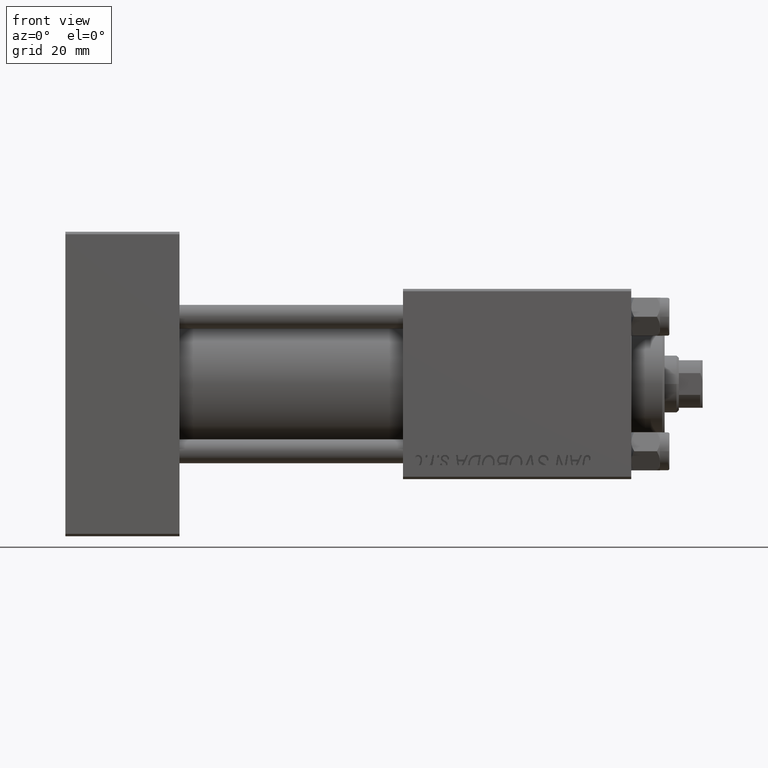
[diagram: clean part render]
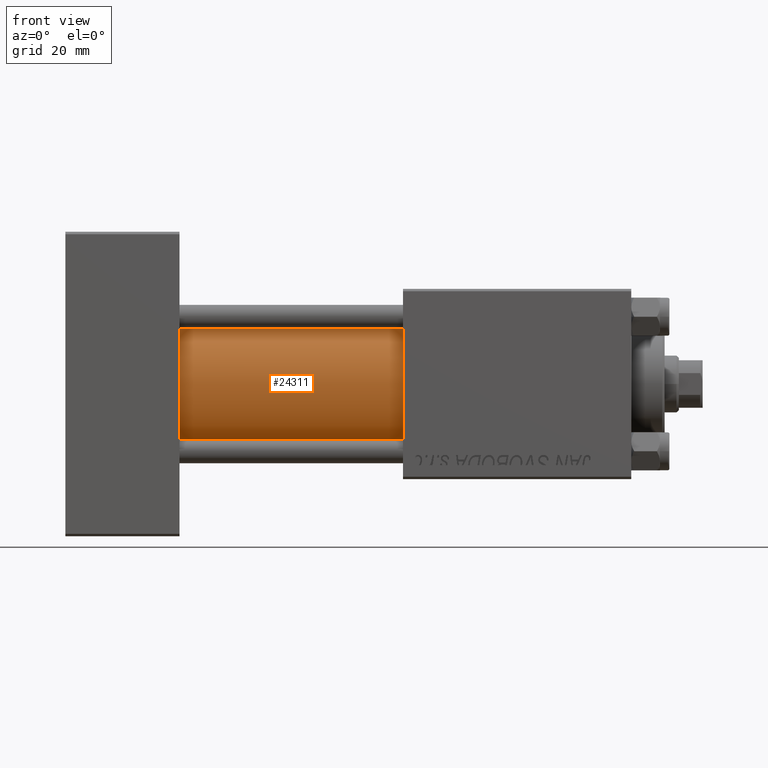
[diagram: same view with one face highlighted and labeled with its STEP entity id]
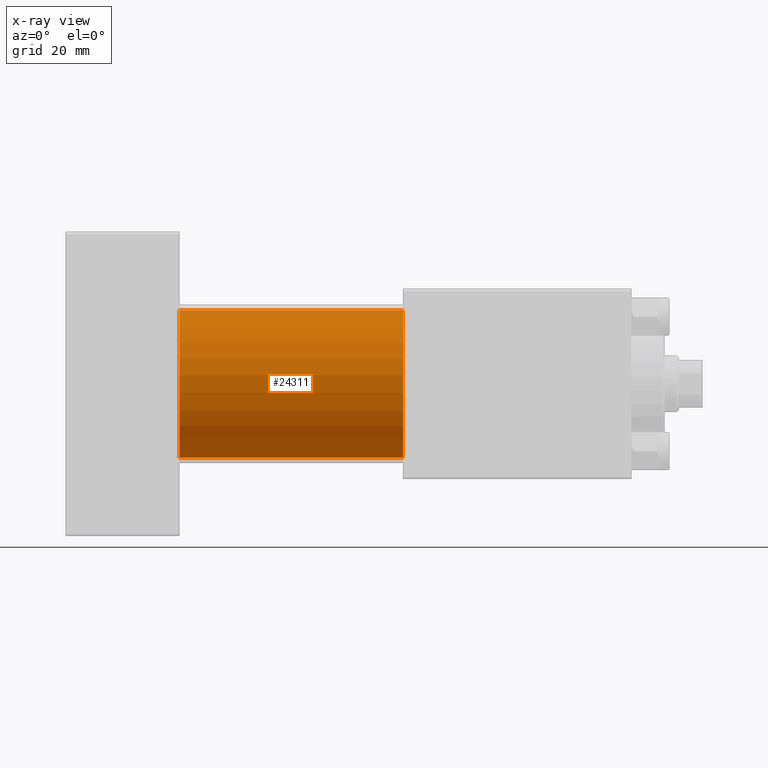
[diagram: x-ray of the same camera — body ghosted, the highlighted face saturated]
A machine part, front view. The second image highlights one B-rep face of the part: STEP entity #24311.
The next image is the same camera in x-ray: the body ghosted, the highlighted face saturated — about 0% of this face is hidden behind the body in this view.
In plain terms, the highlighted cylindrical surface (partial cylindrical patch) has radius 15.5 mm, axis along (-1, -0, -0).
Its self-contained STEP definition (entity closure, byte-faithful):
#1280 = EDGE_CURVE ( 'NONE', #14772, #36867, #15495, .T. ) ;
#4194 = DIRECTION ( 'NONE',  ( -1.000000000000000000, -0.000000000000000000, -0.000000000000000000 ) ) ;
#5879 = EDGE_CURVE ( 'NONE', #14772, #43640, #13635, .T. ) ;
#6112 = LINE ( 'NONE', #10396, #26934 ) ;
#6491 = CARTESIAN_POINT ( 'NONE',  ( 71.00000000000001421, -2.602085213965210642E-15, 0.000000000000000000 ) ) ;
#6820 = ORIENTED_EDGE ( 'NONE', *, *, #5879, .T. ) ;
#7965 = EDGE_LOOP ( 'NONE', ( #46929, #36886, #6820, #33206 ) ) ;
#9108 = DIRECTION ( 'NONE',  ( -1.000000000000000000, -0.000000000000000000, -0.000000000000000000 ) ) ;
#10396 = CARTESIAN_POINT ( 'NONE',  ( 71.00000000000001421, -7.038826752868131828E-16, -15.50000000000000000 ) ) ;
#12528 = FACE_OUTER_BOUND ( 'NONE', #7965, .T. ) ;
#13635 = LINE ( 'NONE', #36130, #34577 ) ;
#13930 = DIRECTION ( 'NONE',  ( -1.000000000000000000, -0.000000000000000000, -0.000000000000000000 ) ) ;
#14080 = DIRECTION ( 'NONE',  ( 0.000000000000000000, 0.000000000000000000, 1.000000000000000000 ) ) ;
#14307 = DIRECTION ( 'NONE',  ( 0.000000000000000000, 0.000000000000000000, -1.000000000000000000 ) ) ;
#14576 = DIRECTION ( 'NONE',  ( 1.000000000000000000, 0.000000000000000000, 0.000000000000000000 ) ) ;
#14772 = VERTEX_POINT ( 'NONE', #19946 ) ;
#15495 = CIRCLE ( 'NONE', #25937, 15.50000000000000000 ) ;
#16171 = CARTESIAN_POINT ( 'NONE',  ( 71.00000000000001421, -7.038826752868131828E-16, -15.50000000000000000 ) ) ;
#19946 = CARTESIAN_POINT ( 'NONE',  ( 71.00000000000001421, -2.602085213965210642E-15, 15.50000000000000000 ) ) ;
#21138 = DIRECTION ( 'NONE',  ( 1.000000000000000000, 0.000000000000000000, 0.000000000000000000 ) ) ;
#22414 = VERTEX_POINT ( 'NONE', #38548 ) ;
#23296 = EDGE_CURVE ( 'NONE', #43640, #22414, #48661, .T. ) ;
#24311 = ADVANCED_FACE ( 'NONE', ( #12528 ), #47112, .T. ) ;
#24386 = DIRECTION ( 'NONE',  ( 0.000000000000000000, 0.000000000000000000, 1.000000000000000000 ) ) ;
#25937 = AXIS2_PLACEMENT_3D ( 'NONE', #6491, #21138, #14307 ) ;
#26934 = VECTOR ( 'NONE', #13930, 1000.000000000000000 ) ;
#30954 = AXIS2_PLACEMENT_3D ( 'NONE', #42578, #4194, #24386 ) ;
#33206 = ORIENTED_EDGE ( 'NONE', *, *, #23296, .T. ) ;
#34577 = VECTOR ( 'NONE', #9108, 1000.000000000000000 ) ;
#36130 = CARTESIAN_POINT ( 'NONE',  ( 71.00000000000001421, -2.602085213965210642E-15, 15.50000000000000000 ) ) ;
#36867 = VERTEX_POINT ( 'NONE', #16171 ) ;
#36886 = ORIENTED_EDGE ( 'NONE', *, *, #1280, .F. ) ;
#38548 = CARTESIAN_POINT ( 'NONE',  ( 24.00000000000000000, -7.038826752868131828E-16, -15.50000000000000000 ) ) ;
#38590 = EDGE_CURVE ( 'NONE', #36867, #22414, #6112, .T. ) ;
#38945 = CARTESIAN_POINT ( 'NONE',  ( 24.00000000000000000, -2.602085213965210642E-15, 15.50000000000000000 ) ) ;
#42578 = CARTESIAN_POINT ( 'NONE',  ( 71.00000000000001421, -2.602085213965210642E-15, 0.000000000000000000 ) ) ;
#43640 = VERTEX_POINT ( 'NONE', #38945 ) ;
#44406 = CARTESIAN_POINT ( 'NONE',  ( 24.00000000000000000, -2.602085213965210642E-15, 0.000000000000000000 ) ) ;
#46250 = AXIS2_PLACEMENT_3D ( 'NONE', #44406, #14576, #14080 ) ;
#46929 = ORIENTED_EDGE ( 'NONE', *, *, #38590, .F. ) ;
#47112 = CYLINDRICAL_SURFACE ( 'NONE', #30954, 15.50000000000000000 ) ;
#48661 = CIRCLE ( 'NONE', #46250, 15.50000000000000000 ) ;